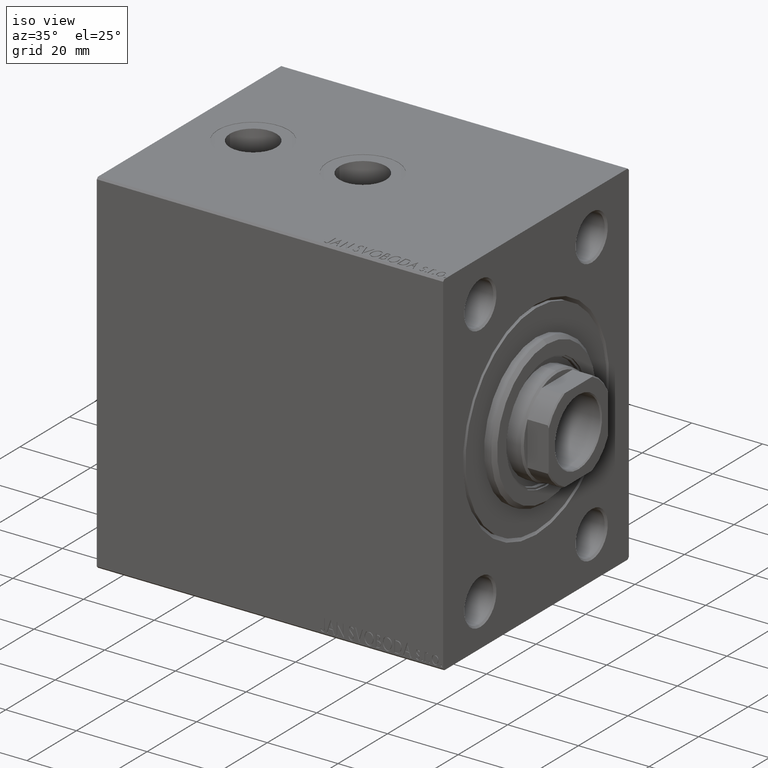
[diagram: clean part render]
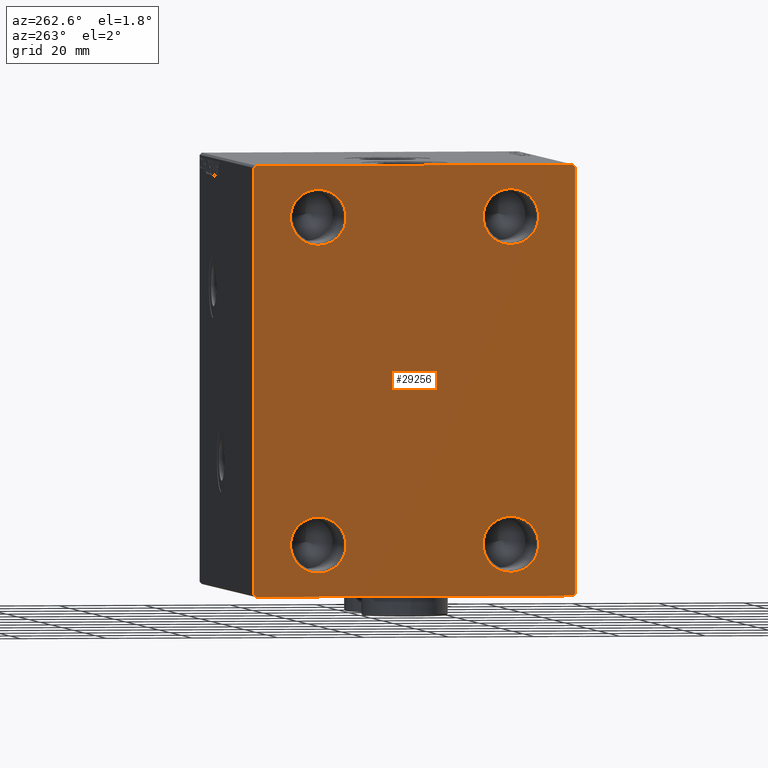
[diagram: tour spotlight — one face highlighted and labeled with its STEP entity id]
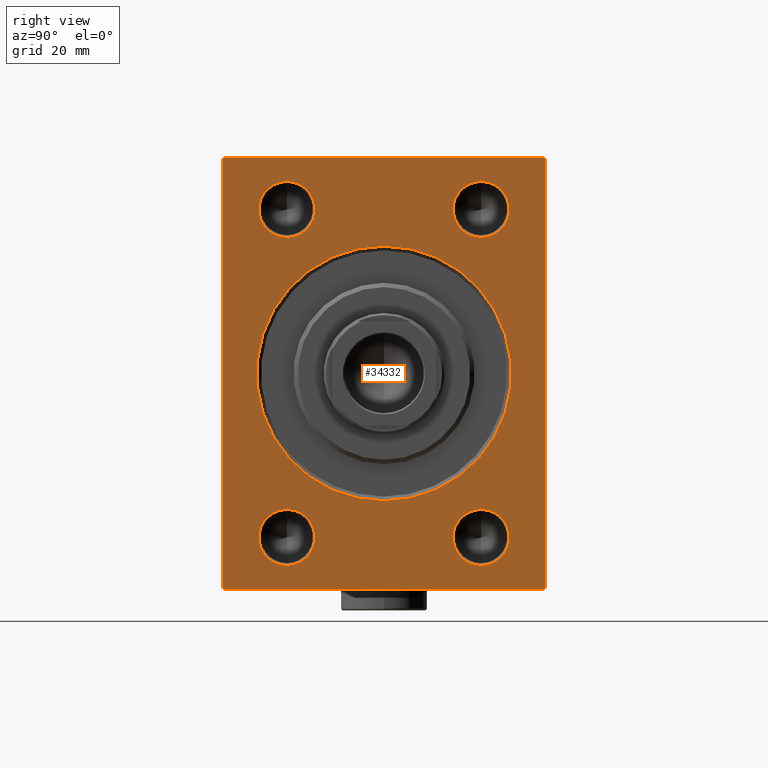
[diagram: tour spotlight — one face highlighted and labeled with its STEP entity id]
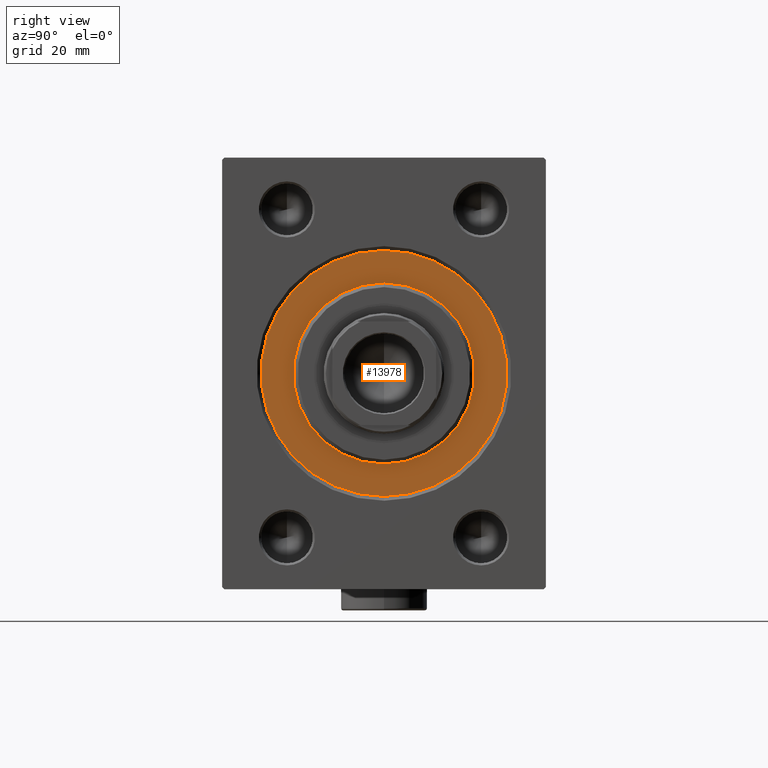
[diagram: tour spotlight — one face highlighted and labeled with its STEP entity id]
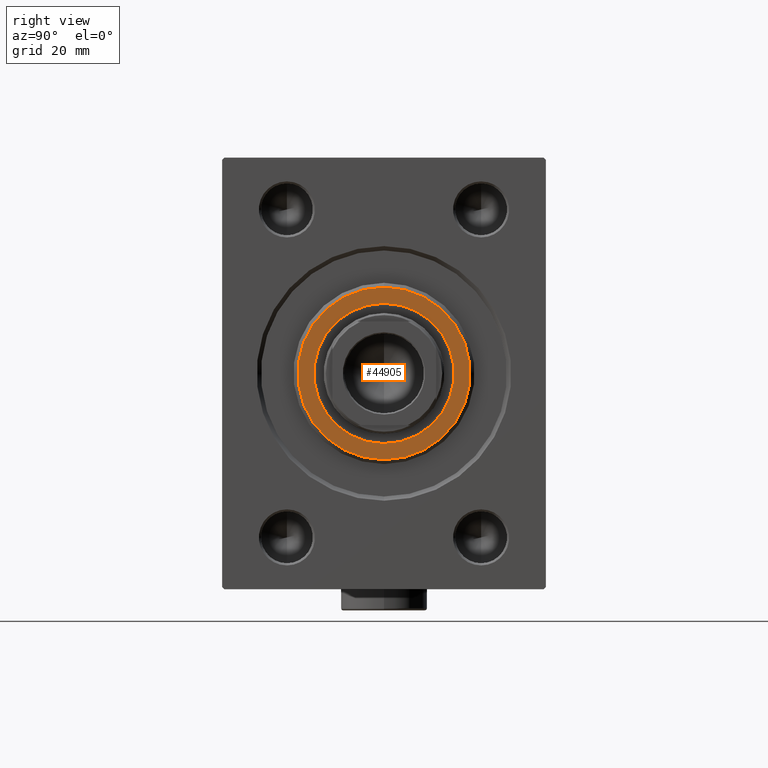
[diagram: tour spotlight — one face highlighted and labeled with its STEP entity id]
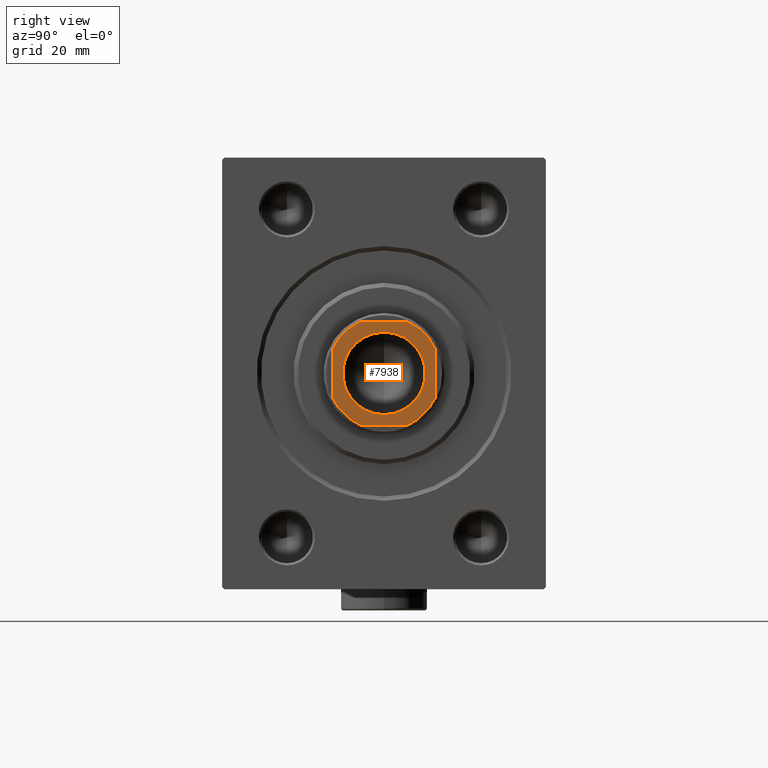
[diagram: tour spotlight — one face highlighted and labeled with its STEP entity id]
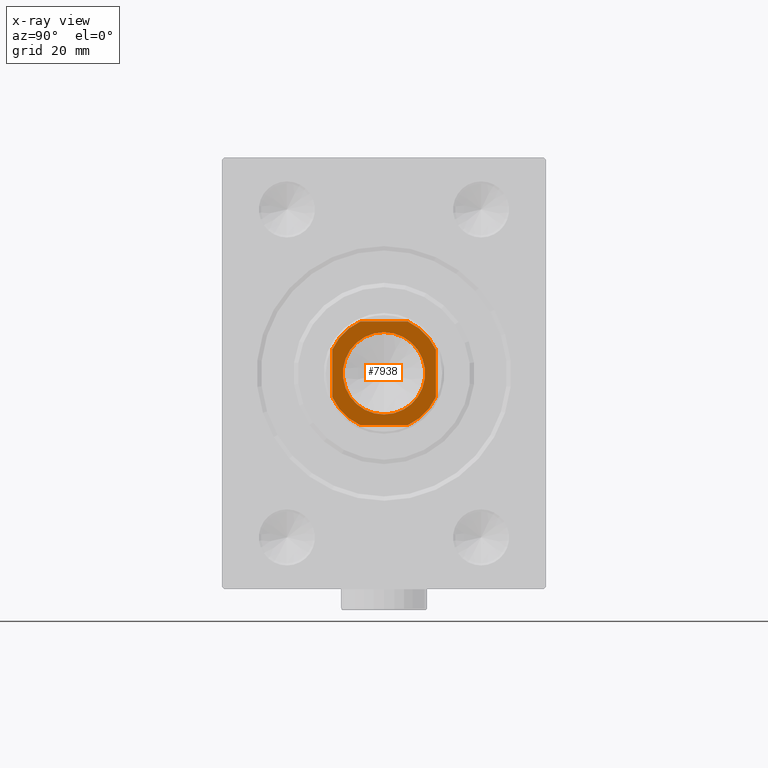
[diagram: x-ray of the same camera — body ghosted, this tour face saturated]
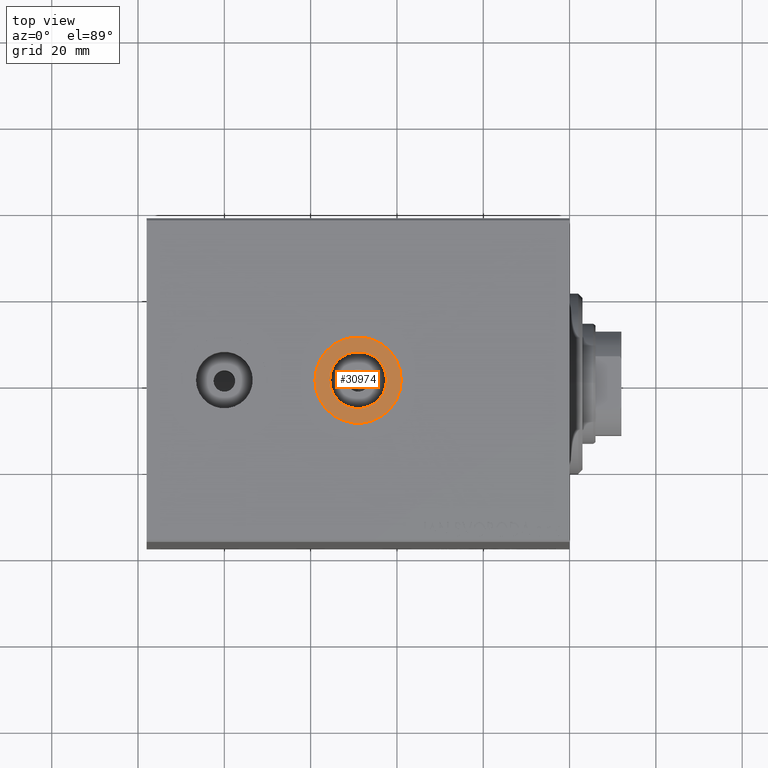
[diagram: tour spotlight — one face highlighted and labeled with its STEP entity id]
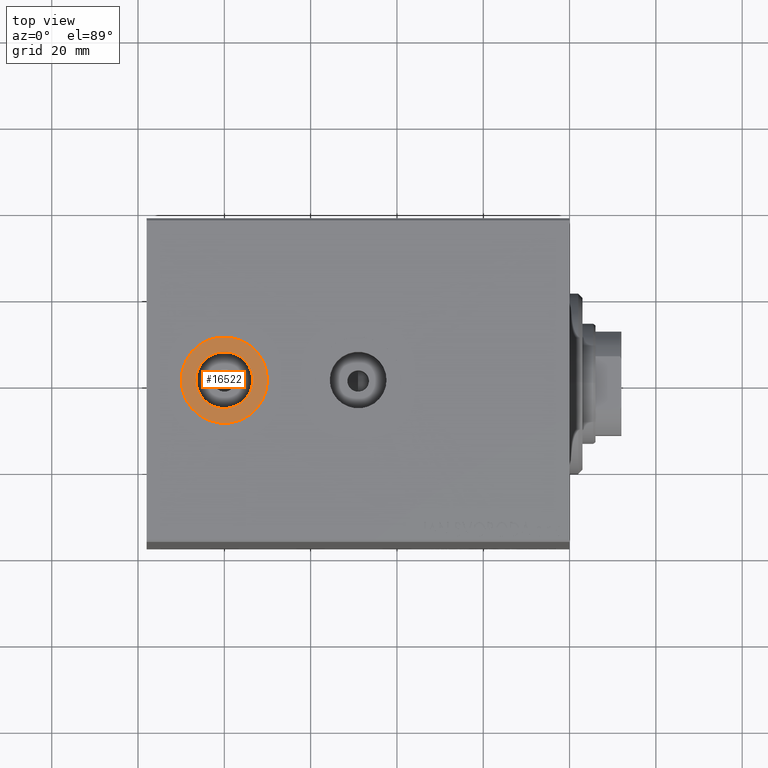
[diagram: tour spotlight — one face highlighted and labeled with its STEP entity id]
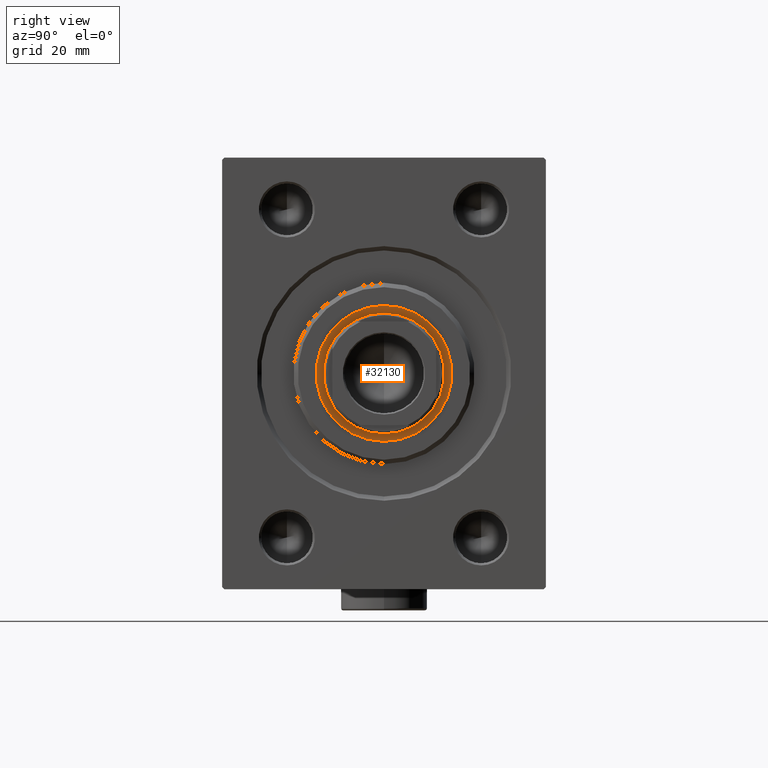
[diagram: tour spotlight — one face highlighted and labeled with its STEP entity id]
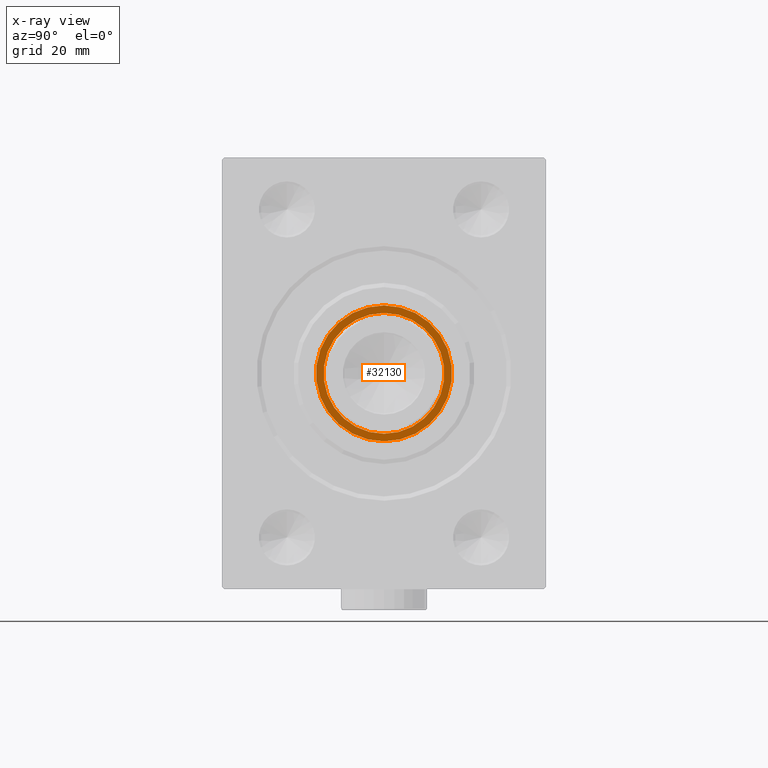
[diagram: x-ray of the same camera — body ghosted, this tour face saturated]
A machine part: a face-by-face anatomy tour. The part has 959 B-rep faces; the first image is the clean iso view, then the 8 largest visible faces are spotlighted one at a time (largest first), each with its STEP entity span.

Face 1 — auxiliary view, entity #29256. In plain terms, the highlighted planar face has unit normal (-1, -0, 0).
Definition (entity closure, byte-faithful):
#219 = CIRCLE ( 'NONE', #1723, 6.499999999999992006 ) ;
#365 = CARTESIAN_POINT ( 'NONE',  ( 98.00000000000000000, -37.50000000000000000, 49.49999999999998579 ) ) ;
#441 = FACE_OUTER_BOUND ( 'NONE', #5605, .T. ) ;
#595 = AXIS2_PLACEMENT_3D ( 'NONE', #32725, #7227, #43242 ) ;
#702 = LINE ( 'NONE', #11709, #22315 ) ;
#986 = LINE ( 'NONE', #33968, #42797 ) ;
#1162 = EDGE_CURVE ( 'NONE', #24617, #41285, #31376, .T. ) ;
#1243 = CARTESIAN_POINT ( 'NONE',  ( 98.00000000000000000, 22.49999999999999289, 38.00000000000000000 ) ) ;
#1632 = EDGE_CURVE ( 'NONE', #30885, #26612, #43307, .T. ) ;
#1723 = AXIS2_PLACEMENT_3D ( 'NONE', #7528, #36296, #21813 ) ;
#1913 = DIRECTION ( 'NONE',  ( -0.000000000000000000, 0.7071067811865474617, 0.7071067811865474617 ) ) ;
#1977 = LINE ( 'NONE', #19549, #35640 ) ;
#2386 = CARTESIAN_POINT ( 'NONE',  ( 98.00000000000000000, 22.49999999999999289, 38.00000000000000000 ) ) ;
#2707 = DIRECTION ( 'NONE',  ( 0.000000000000000000, -1.000000000000000000, -3.700743415417189125E-16 ) ) ;
#2711 = EDGE_CURVE ( 'NONE', #45322, #14829, #44013, .T. ) ;
#2979 = AXIS2_PLACEMENT_3D ( 'NONE', #33720, #22503, #36760 ) ;
#3275 = CIRCLE ( 'NONE', #7744, 6.499999999999992006 ) ;
#3318 = CARTESIAN_POINT ( 'NONE',  ( 98.00000000000000000, 37.49999999999998579, 49.50000000000000000 ) ) ;
#3762 = CARTESIAN_POINT ( 'NONE',  ( 98.00000000000000000, 22.49999999999999289, 44.49999999999999289 ) ) ;
#4053 = EDGE_LOOP ( 'NONE', ( #7815, #37661 ) ) ;
#4118 = ORIENTED_EDGE ( 'NONE', *, *, #26561, .T. ) ;
#4178 = PLANE ( 'NONE',  #595 ) ;
#4517 = VECTOR ( 'NONE', #16775, 1000.000000000000114 ) ;
#5352 = AXIS2_PLACEMENT_3D ( 'NONE', #2386, #46113, #30944 ) ;
#5605 = EDGE_LOOP ( 'NONE', ( #19319, #26660, #19439, #24216, #27601, #26966, #25059, #4118 ) ) ;
#7227 = DIRECTION ( 'NONE',  ( 1.000000000000000000, 0.000000000000000000, 0.000000000000000000 ) ) ;
#7263 = ORIENTED_EDGE ( 'NONE', *, *, #12793, .F. ) ;
#7528 = CARTESIAN_POINT ( 'NONE',  ( 98.00000000000000000, -22.50000000000000711, -38.00000000000000000 ) ) ;
#7744 = AXIS2_PLACEMENT_3D ( 'NONE', #1243, #43132, #11784 ) ;
#7815 = ORIENTED_EDGE ( 'NONE', *, *, #40571, .F. ) ;
#8018 = EDGE_LOOP ( 'NONE', ( #9706, #10350 ) ) ;
#8451 = DIRECTION ( 'NONE',  ( 1.000000000000000000, -0.000000000000000000, -0.000000000000000000 ) ) ;
#8541 = DIRECTION ( 'NONE',  ( -0.000000000000000000, -0.7071067811865474617, 0.7071067811865474617 ) ) ;
#8925 = DIRECTION ( 'NONE',  ( 0.000000000000000000, 0.000000000000000000, -1.000000000000000000 ) ) ;
#9035 = LINE ( 'NONE', #30102, #4517 ) ;
#9161 = EDGE_CURVE ( 'NONE', #26612, #30885, #32358, .T. ) ;
#9706 = ORIENTED_EDGE ( 'NONE', *, *, #10072, .F. ) ;
#9768 = EDGE_CURVE ( 'NONE', #23449, #28855, #27507, .T. ) ;
#10072 = EDGE_CURVE ( 'NONE', #45961, #18182, #3275, .T. ) ;
#10350 = ORIENTED_EDGE ( 'NONE', *, *, #45839, .F. ) ;
#10882 = DIRECTION ( 'NONE',  ( 0.000000000000000000, 0.000000000000000000, -1.000000000000000000 ) ) ;
#11508 = DIRECTION ( 'NONE',  ( 0.000000000000000000, 0.000000000000000000, -1.000000000000000000 ) ) ;
#11709 = CARTESIAN_POINT ( 'NONE',  ( 98.00000000000000000, -37.50000000000000000, 49.99999999999998579 ) ) ;
#11728 = CIRCLE ( 'NONE', #22189, 6.499999999999992006 ) ;
#11784 = DIRECTION ( 'NONE',  ( 0.000000000000000000, 0.000000000000000000, -1.000000000000000000 ) ) ;
#12510 = CARTESIAN_POINT ( 'NONE',  ( 98.00000000000000000, 22.49999999999999289, -44.49999999999999289 ) ) ;
#12793 = EDGE_CURVE ( 'NONE', #22234, #36794, #219, .T. ) ;
#12819 = VECTOR ( 'NONE', #31768, 1000.000000000000114 ) ;
#13005 = CARTESIAN_POINT ( 'NONE',  ( 98.00000000000000000, 37.49999999999998579, 50.00000000000001421 ) ) ;
#13530 = CARTESIAN_POINT ( 'NONE',  ( 98.00000000000000000, -43.50000000000000711, -43.50000000000000711 ) ) ;
#13597 = CIRCLE ( 'NONE', #5352, 6.499999999999992006 ) ;
#13859 = CARTESIAN_POINT ( 'NONE',  ( 98.00000000000000000, -37.50000000000000000, -49.50000000000001421 ) ) ;
#14043 = CARTESIAN_POINT ( 'NONE',  ( 98.00000000000000000, -22.50000000000000711, 44.49999999999999289 ) ) ;
#14472 = EDGE_CURVE ( 'NONE', #32995, #20546, #39419, .T. ) ;
#14829 = VERTEX_POINT ( 'NONE', #15581 ) ;
#15018 = CARTESIAN_POINT ( 'NONE',  ( 98.00000000000000000, -22.50000000000000711, -31.50000000000000711 ) ) ;
#15066 = CARTESIAN_POINT ( 'NONE',  ( 98.00000000000000000, -22.50000000000000711, 31.50000000000000711 ) ) ;
#15491 = DIRECTION ( 'NONE',  ( 1.000000000000000000, -0.000000000000000000, -0.000000000000000000 ) ) ;
#15581 = CARTESIAN_POINT ( 'NONE',  ( 98.00000000000000000, 37.00000000000000000, -50.00000000000000000 ) ) ;
#16399 = CARTESIAN_POINT ( 'NONE',  ( 98.00000000000000000, 22.49999999999999289, -38.00000000000000000 ) ) ;
#16638 = DIRECTION ( 'NONE',  ( 1.000000000000000000, -0.000000000000000000, -0.000000000000000000 ) ) ;
#16683 = AXIS2_PLACEMENT_3D ( 'NONE', #16399, #16638, #44922 ) ;
#16775 = DIRECTION ( 'NONE',  ( 0.000000000000000000, -0.7071067811865474617, -0.7071067811865474617 ) ) ;
#17378 = CARTESIAN_POINT ( 'NONE',  ( 98.00000000000000000, -37.00000000000000000, 49.99999999999998579 ) ) ;
#18182 = VERTEX_POINT ( 'NONE', #34543 ) ;
#19319 = ORIENTED_EDGE ( 'NONE', *, *, #9768, .T. ) ;
#19439 = ORIENTED_EDGE ( 'NONE', *, *, #33187, .T. ) ;
#19549 = CARTESIAN_POINT ( 'NONE',  ( 98.00000000000000000, 43.49999999999998579, 43.49999999999998579 ) ) ;
#20546 = VERTEX_POINT ( 'NONE', #3318 ) ;
#21450 = CARTESIAN_POINT ( 'NONE',  ( 98.00000000000000000, 36.99999999999997158, 50.00000000000001421 ) ) ;
#21813 = DIRECTION ( 'NONE',  ( 0.000000000000000000, 0.000000000000000000, -1.000000000000000000 ) ) ;
#21920 = VECTOR ( 'NONE', #2707, 1000.000000000000000 ) ;
#22189 = AXIS2_PLACEMENT_3D ( 'NONE', #26226, #8451, #11508 ) ;
#22234 = VERTEX_POINT ( 'NONE', #15018 ) ;
#22315 = VECTOR ( 'NONE', #39555, 1000.000000000000000 ) ;
#22503 = DIRECTION ( 'NONE',  ( 1.000000000000000000, -0.000000000000000000, -0.000000000000000000 ) ) ;
#23449 = VERTEX_POINT ( 'NONE', #21450 ) ;
#23817 = ORIENTED_EDGE ( 'NONE', *, *, #24980, .F. ) ;
#24216 = ORIENTED_EDGE ( 'NONE', *, *, #41573, .T. ) ;
#24617 = VERTEX_POINT ( 'NONE', #15066 ) ;
#24980 = EDGE_CURVE ( 'NONE', #36794, #22234, #11728, .T. ) ;
#25059 = ORIENTED_EDGE ( 'NONE', *, *, #14472, .T. ) ;
#25389 = CARTESIAN_POINT ( 'NONE',  ( 98.00000000000000000, 37.50000000000000000, -50.00000000000000000 ) ) ;
#26146 = AXIS2_PLACEMENT_3D ( 'NONE', #43376, #33082, #10882 ) ;
#26226 = CARTESIAN_POINT ( 'NONE',  ( 98.00000000000000000, -22.50000000000000711, -38.00000000000000000 ) ) ;
#26561 = EDGE_CURVE ( 'NONE', #20546, #23449, #1977, .T. ) ;
#26612 = VERTEX_POINT ( 'NONE', #12510 ) ;
#26660 = ORIENTED_EDGE ( 'NONE', *, *, #39960, .T. ) ;
#26966 = ORIENTED_EDGE ( 'NONE', *, *, #44947, .T. ) ;
#27507 = LINE ( 'NONE', #13005, #21920 ) ;
#27601 = ORIENTED_EDGE ( 'NONE', *, *, #2711, .T. ) ;
#27698 = VECTOR ( 'NONE', #40508, 1000.000000000000000 ) ;
#27984 = CARTESIAN_POINT ( 'NONE',  ( 98.00000000000000000, -22.50000000000000711, -44.49999999999999289 ) ) ;
#28515 = FACE_BOUND ( 'NONE', #4053, .T. ) ;
#28814 = VERTEX_POINT ( 'NONE', #13859 ) ;
#28855 = VERTEX_POINT ( 'NONE', #17378 ) ;
#29256 = ADVANCED_FACE ( 'NONE', ( #39745, #28515, #32035, #32498, #441 ), #4178, .T. ) ;
#29764 = CARTESIAN_POINT ( 'NONE',  ( 98.00000000000000000, -37.50000000000000000, -50.00000000000001421 ) ) ;
#30102 = CARTESIAN_POINT ( 'NONE',  ( 98.00000000000000000, -43.49999999999999289, 43.49999999999999289 ) ) ;
#30194 = EDGE_LOOP ( 'NONE', ( #7263, #23817 ) ) ;
#30648 = ORIENTED_EDGE ( 'NONE', *, *, #1632, .F. ) ;
#30885 = VERTEX_POINT ( 'NONE', #39360 ) ;
#30944 = DIRECTION ( 'NONE',  ( 0.000000000000000000, 0.000000000000000000, -1.000000000000000000 ) ) ;
#31376 = CIRCLE ( 'NONE', #26146, 6.499999999999992006 ) ;
#31768 = DIRECTION ( 'NONE',  ( -0.000000000000000000, 0.7071067811865474617, -0.7071067811865474617 ) ) ;
#32035 = FACE_BOUND ( 'NONE', #30194, .T. ) ;
#32358 = CIRCLE ( 'NONE', #16683, 6.499999999999992006 ) ;
#32498 = FACE_BOUND ( 'NONE', #38538, .T. ) ;
#32725 = CARTESIAN_POINT ( 'NONE',  ( 98.00000000000000000, 0.000000000000000000, 0.000000000000000000 ) ) ;
#32858 = DIRECTION ( 'NONE',  ( 0.000000000000000000, -1.387778780781445429E-16, 1.000000000000000000 ) ) ;
#32995 = VERTEX_POINT ( 'NONE', #44492 ) ;
#33082 = DIRECTION ( 'NONE',  ( 1.000000000000000000, -0.000000000000000000, -0.000000000000000000 ) ) ;
#33187 = EDGE_CURVE ( 'NONE', #45438, #28814, #702, .T. ) ;
#33720 = CARTESIAN_POINT ( 'NONE',  ( 98.00000000000000000, 22.49999999999999289, -38.00000000000000000 ) ) ;
#33968 = CARTESIAN_POINT ( 'NONE',  ( 98.00000000000000000, 43.50000000000000711, -43.50000000000000711 ) ) ;
#34543 = CARTESIAN_POINT ( 'NONE',  ( 98.00000000000000000, 22.49999999999999289, 31.50000000000000711 ) ) ;
#34828 = LINE ( 'NONE', #13530, #12819 ) ;
#35209 = CIRCLE ( 'NONE', #38208, 6.499999999999992006 ) ;
#35640 = VECTOR ( 'NONE', #8541, 1000.000000000000114 ) ;
#36296 = DIRECTION ( 'NONE',  ( 1.000000000000000000, -0.000000000000000000, -0.000000000000000000 ) ) ;
#36760 = DIRECTION ( 'NONE',  ( 0.000000000000000000, 0.000000000000000000, -1.000000000000000000 ) ) ;
#36794 = VERTEX_POINT ( 'NONE', #27984 ) ;
#37661 = ORIENTED_EDGE ( 'NONE', *, *, #1162, .F. ) ;
#38208 = AXIS2_PLACEMENT_3D ( 'NONE', #44944, #15491, #8925 ) ;
#38538 = EDGE_LOOP ( 'NONE', ( #30648, #39922 ) ) ;
#38754 = CARTESIAN_POINT ( 'NONE',  ( 98.00000000000000000, -37.00000000000000000, -50.00000000000001421 ) ) ;
#39094 = VECTOR ( 'NONE', #32858, 1000.000000000000000 ) ;
#39360 = CARTESIAN_POINT ( 'NONE',  ( 98.00000000000000000, 22.49999999999999289, -31.50000000000000711 ) ) ;
#39419 = LINE ( 'NONE', #25389, #39094 ) ;
#39555 = DIRECTION ( 'NONE',  ( 0.000000000000000000, 0.000000000000000000, -1.000000000000000000 ) ) ;
#39745 = FACE_BOUND ( 'NONE', #8018, .T. ) ;
#39922 = ORIENTED_EDGE ( 'NONE', *, *, #9161, .F. ) ;
#39960 = EDGE_CURVE ( 'NONE', #28855, #45438, #9035, .T. ) ;
#40508 = DIRECTION ( 'NONE',  ( 0.000000000000000000, 1.000000000000000000, 1.850371707708594316E-16 ) ) ;
#40571 = EDGE_CURVE ( 'NONE', #41285, #24617, #35209, .T. ) ;
#41285 = VERTEX_POINT ( 'NONE', #14043 ) ;
#41573 = EDGE_CURVE ( 'NONE', #28814, #45322, #34828, .T. ) ;
#42797 = VECTOR ( 'NONE', #1913, 1000.000000000000114 ) ;
#43132 = DIRECTION ( 'NONE',  ( 1.000000000000000000, -0.000000000000000000, -0.000000000000000000 ) ) ;
#43242 = DIRECTION ( 'NONE',  ( 0.000000000000000000, 0.000000000000000000, -1.000000000000000000 ) ) ;
#43307 = CIRCLE ( 'NONE', #2979, 6.499999999999992006 ) ;
#43376 = CARTESIAN_POINT ( 'NONE',  ( 98.00000000000000000, -22.50000000000000711, 38.00000000000000000 ) ) ;
#44013 = LINE ( 'NONE', #29764, #27698 ) ;
#44492 = CARTESIAN_POINT ( 'NONE',  ( 98.00000000000000000, 37.50000000000000000, -49.50000000000000000 ) ) ;
#44922 = DIRECTION ( 'NONE',  ( 0.000000000000000000, 0.000000000000000000, -1.000000000000000000 ) ) ;
#44944 = CARTESIAN_POINT ( 'NONE',  ( 98.00000000000000000, -22.50000000000000711, 38.00000000000000000 ) ) ;
#44947 = EDGE_CURVE ( 'NONE', #14829, #32995, #986, .T. ) ;
#45322 = VERTEX_POINT ( 'NONE', #38754 ) ;
#45438 = VERTEX_POINT ( 'NONE', #365 ) ;
#45839 = EDGE_CURVE ( 'NONE', #18182, #45961, #13597, .T. ) ;
#45961 = VERTEX_POINT ( 'NONE', #3762 ) ;
#46113 = DIRECTION ( 'NONE',  ( 1.000000000000000000, -0.000000000000000000, -0.000000000000000000 ) ) ;

Face 2 — right view, entity #34332. In plain terms, the highlighted planar face has unit normal (-1, -0, 0).
Definition (entity closure, byte-faithful):
#358 = ORIENTED_EDGE ( 'NONE', *, *, #15902, .T. ) ;
#712 = EDGE_LOOP ( 'NONE', ( #17985, #45140 ) ) ;
#1121 = CARTESIAN_POINT ( 'NONE',  ( 0.000000000000000000, -22.50000000000000711, 44.49999999999999289 ) ) ;
#1361 = CARTESIAN_POINT ( 'NONE',  ( 0.000000000000000000, -37.50000000000000000, 49.49999999999998579 ) ) ;
#1576 = ORIENTED_EDGE ( 'NONE', *, *, #30131, .T. ) ;
#2058 = DIRECTION ( 'NONE',  ( 1.000000000000000000, 0.000000000000000000, 0.000000000000000000 ) ) ;
#2124 = PLANE ( 'NONE',  #15603 ) ;
#2180 = CARTESIAN_POINT ( 'NONE',  ( 0.000000000000000000, 22.49999999999999289, -44.49999999999999289 ) ) ;
#2460 = ORIENTED_EDGE ( 'NONE', *, *, #9864, .T. ) ;
#2561 = CARTESIAN_POINT ( 'NONE',  ( 0.000000000000000000, 37.50000000000000000, -49.50000000000000000 ) ) ;
#2646 = ORIENTED_EDGE ( 'NONE', *, *, #18092, .T. ) ;
#2681 = ORIENTED_EDGE ( 'NONE', *, *, #35077, .T. ) ;
#2874 = DIRECTION ( 'NONE',  ( 0.000000000000000000, 0.000000000000000000, -1.000000000000000000 ) ) ;
#2932 = DIRECTION ( 'NONE',  ( 0.000000000000000000, 0.000000000000000000, -1.000000000000000000 ) ) ;
#3020 = EDGE_LOOP ( 'NONE', ( #2646, #30304 ) ) ;
#3115 = CARTESIAN_POINT ( 'NONE',  ( 0.000000000000000000, 36.99999999999997158, 50.00000000000001421 ) ) ;
#3567 = DIRECTION ( 'NONE',  ( 0.000000000000000000, 1.000000000000000000, 1.850371707708594316E-16 ) ) ;
#3786 = DIRECTION ( 'NONE',  ( 0.000000000000000000, 0.000000000000000000, -1.000000000000000000 ) ) ;
#4044 = CIRCLE ( 'NONE', #19729, 6.499999999999992006 ) ;
#5091 = CIRCLE ( 'NONE', #24557, 29.50000000000001421 ) ;
#5222 = CIRCLE ( 'NONE', #39601, 6.499999999999992006 ) ;
#5233 = CARTESIAN_POINT ( 'NONE',  ( 0.000000000000000000, 3.612708057484693970E-15, -29.50000000000001421 ) ) ;
#5394 = FACE_BOUND ( 'NONE', #20376, .T. ) ;
#5454 = DIRECTION ( 'NONE',  ( 0.000000000000000000, 0.000000000000000000, -1.000000000000000000 ) ) ;
#5681 = CARTESIAN_POINT ( 'NONE',  ( 0.000000000000000000, -37.00000000000000000, -50.00000000000001421 ) ) ;
#5687 = DIRECTION ( 'NONE',  ( 1.000000000000000000, 0.000000000000000000, 0.000000000000000000 ) ) ;
#6140 = CARTESIAN_POINT ( 'NONE',  ( 0.000000000000000000, -37.00000000000000000, -50.00000000000001421 ) ) ;
#6202 = ORIENTED_EDGE ( 'NONE', *, *, #16506, .T. ) ;
#6313 = EDGE_CURVE ( 'NONE', #7914, #33100, #20200, .T. ) ;
#6448 = CARTESIAN_POINT ( 'NONE',  ( 0.000000000000000000, -22.50000000000000711, 38.00000000000000000 ) ) ;
#6487 = VERTEX_POINT ( 'NONE', #1121 ) ;
#6727 = CARTESIAN_POINT ( 'NONE',  ( 0.000000000000000000, 22.49999999999999289, 38.00000000000000000 ) ) ;
#6861 = CARTESIAN_POINT ( 'NONE',  ( 0.000000000000000000, 22.49999999999999289, -31.50000000000000711 ) ) ;
#7456 = DIRECTION ( 'NONE',  ( 0.000000000000000000, -0.7071067811865474617, -0.7071067811865474617 ) ) ;
#7864 = AXIS2_PLACEMENT_3D ( 'NONE', #17951, #39225, #21461 ) ;
#7914 = VERTEX_POINT ( 'NONE', #5681 ) ;
#8004 = DIRECTION ( 'NONE',  ( 0.000000000000000000, -1.387778780781445429E-16, 1.000000000000000000 ) ) ;
#8171 = AXIS2_PLACEMENT_3D ( 'NONE', #41611, #38573, #29180 ) ;
#8448 = AXIS2_PLACEMENT_3D ( 'NONE', #25991, #29502, #43763 ) ;
#8687 = FACE_BOUND ( 'NONE', #712, .T. ) ;
#8878 = VECTOR ( 'NONE', #36139, 1000.000000000000114 ) ;
#9102 = EDGE_CURVE ( 'NONE', #6487, #27012, #20430, .T. ) ;
#9153 = FACE_BOUND ( 'NONE', #38932, .T. ) ;
#9357 = ORIENTED_EDGE ( 'NONE', *, *, #39411, .F. ) ;
#9864 = EDGE_CURVE ( 'NONE', #45717, #43579, #14435, .T. ) ;
#10246 = CARTESIAN_POINT ( 'NONE',  ( 0.000000000000000000, -37.50000000000000000, 49.49999999999998579 ) ) ;
#10334 = ORIENTED_EDGE ( 'NONE', *, *, #9102, .T. ) ;
#10519 = AXIS2_PLACEMENT_3D ( 'NONE', #6448, #45976, #24923 ) ;
#11086 = VERTEX_POINT ( 'NONE', #3115 ) ;
#11879 = EDGE_LOOP ( 'NONE', ( #30481, #6202, #22770, #2681, #31862, #35160, #9357, #25123 ) ) ;
#11993 = CARTESIAN_POINT ( 'NONE',  ( 0.000000000000000000, 22.49999999999999289, 44.49999999999999289 ) ) ;
#12183 = CARTESIAN_POINT ( 'NONE',  ( 0.000000000000000000, -37.00000000000000000, 49.99999999999998579 ) ) ;
#12657 = FACE_OUTER_BOUND ( 'NONE', #11879, .T. ) ;
#12720 = CIRCLE ( 'NONE', #10519, 6.499999999999992006 ) ;
#13848 = AXIS2_PLACEMENT_3D ( 'NONE', #45223, #20450, #2874 ) ;
#14091 = LINE ( 'NONE', #28358, #46088 ) ;
#14435 = CIRCLE ( 'NONE', #40566, 6.499999999999992006 ) ;
#14575 = CARTESIAN_POINT ( 'NONE',  ( 0.000000000000000000, 37.50000000000000000, -50.00000000000000000 ) ) ;
#15281 = VERTEX_POINT ( 'NONE', #12183 ) ;
#15334 = CARTESIAN_POINT ( 'NONE',  ( 0.000000000000000000, 37.49999999999998579, 49.50000000000000000 ) ) ;
#15603 = AXIS2_PLACEMENT_3D ( 'NONE', #44001, #34181, #16412 ) ;
#15821 = EDGE_CURVE ( 'NONE', #41102, #26792, #32512, .T. ) ;
#15902 = EDGE_CURVE ( 'NONE', #31848, #36778, #34012, .T. ) ;
#15982 = VECTOR ( 'NONE', #40432, 1000.000000000000114 ) ;
#16412 = DIRECTION ( 'NONE',  ( 0.000000000000000000, 0.000000000000000000, -1.000000000000000000 ) ) ;
#16506 = EDGE_CURVE ( 'NONE', #33940, #15281, #37161, .T. ) ;
#17216 = VERTEX_POINT ( 'NONE', #2180 ) ;
#17459 = LINE ( 'NONE', #38949, #8878 ) ;
#17754 = EDGE_CURVE ( 'NONE', #32137, #32559, #36087, .T. ) ;
#17951 = CARTESIAN_POINT ( 'NONE',  ( 0.000000000000000000, 0.000000000000000000, 0.000000000000000000 ) ) ;
#17985 = ORIENTED_EDGE ( 'NONE', *, *, #29486, .T. ) ;
#18082 = VECTOR ( 'NONE', #27669, 1000.000000000000114 ) ;
#18092 = EDGE_CURVE ( 'NONE', #37950, #17216, #4044, .T. ) ;
#18468 = LINE ( 'NONE', #43474, #43174 ) ;
#19177 = LINE ( 'NONE', #25554, #44130 ) ;
#19729 = AXIS2_PLACEMENT_3D ( 'NONE', #30111, #23558, #44598 ) ;
#20200 = LINE ( 'NONE', #6140, #18082 ) ;
#20376 = EDGE_LOOP ( 'NONE', ( #2460, #1576 ) ) ;
#20430 = CIRCLE ( 'NONE', #8448, 6.499999999999992006 ) ;
#20450 = DIRECTION ( 'NONE',  ( 1.000000000000000000, 0.000000000000000000, 0.000000000000000000 ) ) ;
#20560 = CARTESIAN_POINT ( 'NONE',  ( 0.000000000000000000, 0.000000000000000000, 0.000000000000000000 ) ) ;
#21461 = DIRECTION ( 'NONE',  ( 0.000000000000000000, 0.000000000000000000, -1.000000000000000000 ) ) ;
#21802 = LINE ( 'NONE', #24844, #36462 ) ;
#22030 = CARTESIAN_POINT ( 'NONE',  ( 0.000000000000000000, 37.00000000000000000, -50.00000000000000000 ) ) ;
#22088 = ORIENTED_EDGE ( 'NONE', *, *, #39017, .T. ) ;
#22378 = CIRCLE ( 'NONE', #8171, 6.499999999999992006 ) ;
#22410 = EDGE_LOOP ( 'NONE', ( #10334, #22088 ) ) ;
#22770 = ORIENTED_EDGE ( 'NONE', *, *, #28903, .F. ) ;
#23051 = CIRCLE ( 'NONE', #34268, 6.499999999999992006 ) ;
#23558 = DIRECTION ( 'NONE',  ( 1.000000000000000000, 0.000000000000000000, 0.000000000000000000 ) ) ;
#24557 = AXIS2_PLACEMENT_3D ( 'NONE', #20560, #34576, #45566 ) ;
#24682 = DIRECTION ( 'NONE',  ( 1.000000000000000000, 0.000000000000000000, 0.000000000000000000 ) ) ;
#24844 = CARTESIAN_POINT ( 'NONE',  ( 0.000000000000000000, 37.49999999999998579, 50.00000000000001421 ) ) ;
#24917 = EDGE_CURVE ( 'NONE', #33940, #33100, #14091, .T. ) ;
#24923 = DIRECTION ( 'NONE',  ( 0.000000000000000000, 0.000000000000000000, -1.000000000000000000 ) ) ;
#25123 = ORIENTED_EDGE ( 'NONE', *, *, #6313, .T. ) ;
#25554 = CARTESIAN_POINT ( 'NONE',  ( 0.000000000000000000, -37.50000000000000000, -50.00000000000001421 ) ) ;
#25991 = CARTESIAN_POINT ( 'NONE',  ( 0.000000000000000000, -22.50000000000000711, 38.00000000000000000 ) ) ;
#26792 = VERTEX_POINT ( 'NONE', #29545 ) ;
#27012 = VERTEX_POINT ( 'NONE', #36217 ) ;
#27338 = DIRECTION ( 'NONE',  ( 0.000000000000000000, 0.000000000000000000, -1.000000000000000000 ) ) ;
#27669 = DIRECTION ( 'NONE',  ( -0.000000000000000000, -0.7071067811865474617, 0.7071067811865474617 ) ) ;
#28358 = CARTESIAN_POINT ( 'NONE',  ( 0.000000000000000000, -37.50000000000000000, 49.99999999999998579 ) ) ;
#28638 = ORIENTED_EDGE ( 'NONE', *, *, #38440, .T. ) ;
#28903 = EDGE_CURVE ( 'NONE', #11086, #15281, #21802, .T. ) ;
#28910 = VERTEX_POINT ( 'NONE', #22030 ) ;
#29168 = EDGE_CURVE ( 'NONE', #32137, #28910, #18468, .T. ) ;
#29180 = DIRECTION ( 'NONE',  ( 0.000000000000000000, 0.000000000000000000, -1.000000000000000000 ) ) ;
#29474 = CARTESIAN_POINT ( 'NONE',  ( 0.000000000000000000, 22.49999999999999289, 31.50000000000000711 ) ) ;
#29486 = EDGE_CURVE ( 'NONE', #26792, #41102, #5091, .T. ) ;
#29502 = DIRECTION ( 'NONE',  ( 1.000000000000000000, 0.000000000000000000, 0.000000000000000000 ) ) ;
#29545 = CARTESIAN_POINT ( 'NONE',  ( 0.000000000000000000, 0.000000000000000000, 29.50000000000001421 ) ) ;
#29748 = FACE_BOUND ( 'NONE', #22410, .T. ) ;
#30111 = CARTESIAN_POINT ( 'NONE',  ( 0.000000000000000000, 22.49999999999999289, -38.00000000000000000 ) ) ;
#30131 = EDGE_CURVE ( 'NONE', #43579, #45717, #23051, .T. ) ;
#30304 = ORIENTED_EDGE ( 'NONE', *, *, #35554, .T. ) ;
#30481 = ORIENTED_EDGE ( 'NONE', *, *, #24917, .F. ) ;
#31494 = CARTESIAN_POINT ( 'NONE',  ( 0.000000000000000000, -22.50000000000000711, -31.50000000000000711 ) ) ;
#31848 = VERTEX_POINT ( 'NONE', #39899 ) ;
#31862 = ORIENTED_EDGE ( 'NONE', *, *, #17754, .F. ) ;
#32074 = CARTESIAN_POINT ( 'NONE',  ( 0.000000000000000000, -37.50000000000000000, -49.50000000000001421 ) ) ;
#32137 = VERTEX_POINT ( 'NONE', #2561 ) ;
#32441 = VECTOR ( 'NONE', #8004, 1000.000000000000000 ) ;
#32512 = CIRCLE ( 'NONE', #7864, 29.50000000000001421 ) ;
#32559 = VERTEX_POINT ( 'NONE', #15334 ) ;
#33100 = VERTEX_POINT ( 'NONE', #32074 ) ;
#33314 = CARTESIAN_POINT ( 'NONE',  ( 0.000000000000000000, -22.50000000000000711, -38.00000000000000000 ) ) ;
#33940 = VERTEX_POINT ( 'NONE', #10246 ) ;
#34012 = CIRCLE ( 'NONE', #13848, 6.499999999999992006 ) ;
#34181 = DIRECTION ( 'NONE',  ( 1.000000000000000000, 0.000000000000000000, 0.000000000000000000 ) ) ;
#34268 = AXIS2_PLACEMENT_3D ( 'NONE', #6727, #2058, #27338 ) ;
#34332 = ADVANCED_FACE ( 'NONE', ( #8687, #9153, #29748, #5394, #44701, #12657 ), #2124, .F. ) ;
#34576 = DIRECTION ( 'NONE',  ( 1.000000000000000000, 0.000000000000000000, 0.000000000000000000 ) ) ;
#35077 = EDGE_CURVE ( 'NONE', #11086, #32559, #17459, .T. ) ;
#35160 = ORIENTED_EDGE ( 'NONE', *, *, #29168, .T. ) ;
#35554 = EDGE_CURVE ( 'NONE', #17216, #37950, #22378, .T. ) ;
#36087 = LINE ( 'NONE', #14575, #32441 ) ;
#36139 = DIRECTION ( 'NONE',  ( -0.000000000000000000, 0.7071067811865474617, -0.7071067811865474617 ) ) ;
#36217 = CARTESIAN_POINT ( 'NONE',  ( 0.000000000000000000, -22.50000000000000711, 31.50000000000000711 ) ) ;
#36462 = VECTOR ( 'NONE', #39800, 1000.000000000000000 ) ;
#36778 = VERTEX_POINT ( 'NONE', #31494 ) ;
#37161 = LINE ( 'NONE', #1361, #15982 ) ;
#37950 = VERTEX_POINT ( 'NONE', #6861 ) ;
#38440 = EDGE_CURVE ( 'NONE', #36778, #31848, #5222, .T. ) ;
#38573 = DIRECTION ( 'NONE',  ( 1.000000000000000000, 0.000000000000000000, 0.000000000000000000 ) ) ;
#38932 = EDGE_LOOP ( 'NONE', ( #28638, #358 ) ) ;
#38949 = CARTESIAN_POINT ( 'NONE',  ( 0.000000000000000000, 36.99999999999997158, 50.00000000000001421 ) ) ;
#39017 = EDGE_CURVE ( 'NONE', #27012, #6487, #12720, .T. ) ;
#39225 = DIRECTION ( 'NONE',  ( 1.000000000000000000, 0.000000000000000000, 0.000000000000000000 ) ) ;
#39411 = EDGE_CURVE ( 'NONE', #7914, #28910, #19177, .T. ) ;
#39601 = AXIS2_PLACEMENT_3D ( 'NONE', #33314, #5687, #5454 ) ;
#39800 = DIRECTION ( 'NONE',  ( 0.000000000000000000, -1.000000000000000000, -3.700743415417189125E-16 ) ) ;
#39899 = CARTESIAN_POINT ( 'NONE',  ( 0.000000000000000000, -22.50000000000000711, -44.49999999999999289 ) ) ;
#40432 = DIRECTION ( 'NONE',  ( -0.000000000000000000, 0.7071067811865474617, 0.7071067811865474617 ) ) ;
#40566 = AXIS2_PLACEMENT_3D ( 'NONE', #45971, #24682, #2932 ) ;
#41102 = VERTEX_POINT ( 'NONE', #5233 ) ;
#41611 = CARTESIAN_POINT ( 'NONE',  ( 0.000000000000000000, 22.49999999999999289, -38.00000000000000000 ) ) ;
#43174 = VECTOR ( 'NONE', #7456, 1000.000000000000114 ) ;
#43474 = CARTESIAN_POINT ( 'NONE',  ( 0.000000000000000000, 37.50000000000000000, -49.50000000000000000 ) ) ;
#43579 = VERTEX_POINT ( 'NONE', #29474 ) ;
#43763 = DIRECTION ( 'NONE',  ( 0.000000000000000000, 0.000000000000000000, -1.000000000000000000 ) ) ;
#44001 = CARTESIAN_POINT ( 'NONE',  ( 0.000000000000000000, 0.000000000000000000, 0.000000000000000000 ) ) ;
#44130 = VECTOR ( 'NONE', #3567, 1000.000000000000000 ) ;
#44598 = DIRECTION ( 'NONE',  ( 0.000000000000000000, 0.000000000000000000, -1.000000000000000000 ) ) ;
#44701 = FACE_BOUND ( 'NONE', #3020, .T. ) ;
#45140 = ORIENTED_EDGE ( 'NONE', *, *, #15821, .T. ) ;
#45223 = CARTESIAN_POINT ( 'NONE',  ( 0.000000000000000000, -22.50000000000000711, -38.00000000000000000 ) ) ;
#45566 = DIRECTION ( 'NONE',  ( 0.000000000000000000, 0.000000000000000000, -1.000000000000000000 ) ) ;
#45717 = VERTEX_POINT ( 'NONE', #11993 ) ;
#45971 = CARTESIAN_POINT ( 'NONE',  ( 0.000000000000000000, 22.49999999999999289, 38.00000000000000000 ) ) ;
#45976 = DIRECTION ( 'NONE',  ( 1.000000000000000000, 0.000000000000000000, 0.000000000000000000 ) ) ;
#46088 = VECTOR ( 'NONE', #3786, 1000.000000000000000 ) ;

Face 3 — right view, entity #13978. In plain terms, the highlighted planar face has unit normal (-1, 0, 0).
Definition (entity closure, byte-faithful):
#217 = DIRECTION ( 'NONE',  ( -1.000000000000000000, 0.000000000000000000, 0.000000000000000000 ) ) ;
#907 = DIRECTION ( 'NONE',  ( 1.000000000000000000, -0.000000000000000000, 0.000000000000000000 ) ) ;
#1231 = ORIENTED_EDGE ( 'NONE', *, *, #8609, .F. ) ;
#1601 = DIRECTION ( 'NONE',  ( 1.000000000000000000, -0.000000000000000000, 0.000000000000000000 ) ) ;
#1841 = CARTESIAN_POINT ( 'NONE',  ( 0.000000000000000000, 0.000000000000000000, 0.000000000000000000 ) ) ;
#2119 = DIRECTION ( 'NONE',  ( 0.000000000000000000, 0.000000000000000000, 1.000000000000000000 ) ) ;
#3705 = VERTEX_POINT ( 'NONE', #39906 ) ;
#4647 = PLANE ( 'NONE',  #10722 ) ;
#7117 = VERTEX_POINT ( 'NONE', #41005 ) ;
#7944 = DIRECTION ( 'NONE',  ( -1.000000000000000000, 0.000000000000000000, 0.000000000000000000 ) ) ;
#8609 = EDGE_CURVE ( 'NONE', #3705, #41035, #17421, .T. ) ;
#9773 = EDGE_LOOP ( 'NONE', ( #1231, #26091 ) ) ;
#9792 = CARTESIAN_POINT ( 'NONE',  ( 0.000000000000000000, 3.490243377569956456E-15, 28.50000000000000000 ) ) ;
#10722 = AXIS2_PLACEMENT_3D ( 'NONE', #25733, #7944, #25267 ) ;
#11665 = AXIS2_PLACEMENT_3D ( 'NONE', #17570, #217, #28086 ) ;
#13978 = ADVANCED_FACE ( 'NONE', ( #40445, #22221 ), #4647, .F. ) ;
#16219 = EDGE_CURVE ( 'NONE', #7117, #38766, #39900, .T. ) ;
#17421 = CIRCLE ( 'NONE', #21888, 21.00000000000000000 ) ;
#17570 = CARTESIAN_POINT ( 'NONE',  ( 0.000000000000000000, 0.000000000000000000, 0.000000000000000000 ) ) ;
#19023 = ORIENTED_EDGE ( 'NONE', *, *, #16219, .F. ) ;
#19536 = CARTESIAN_POINT ( 'NONE',  ( 0.000000000000000000, 2.571758278209441661E-15, -21.00000000000000000 ) ) ;
#21680 = ORIENTED_EDGE ( 'NONE', *, *, #22364, .F. ) ;
#21888 = AXIS2_PLACEMENT_3D ( 'NONE', #1841, #1601, #37870 ) ;
#21994 = CARTESIAN_POINT ( 'NONE',  ( 0.000000000000000000, 0.000000000000000000, 0.000000000000000000 ) ) ;
#22221 = FACE_OUTER_BOUND ( 'NONE', #39962, .T. ) ;
#22364 = EDGE_CURVE ( 'NONE', #38766, #7117, #31080, .T. ) ;
#25267 = DIRECTION ( 'NONE',  ( 0.000000000000000000, 0.000000000000000000, 1.000000000000000000 ) ) ;
#25733 = CARTESIAN_POINT ( 'NONE',  ( 0.000000000000000000, 0.000000000000000000, 0.000000000000000000 ) ) ;
#26091 = ORIENTED_EDGE ( 'NONE', *, *, #34440, .F. ) ;
#28086 = DIRECTION ( 'NONE',  ( 0.000000000000000000, 0.000000000000000000, 1.000000000000000000 ) ) ;
#28317 = AXIS2_PLACEMENT_3D ( 'NONE', #21994, #907, #28533 ) ;
#28533 = DIRECTION ( 'NONE',  ( 0.000000000000000000, 0.000000000000000000, -1.000000000000000000 ) ) ;
#29438 = AXIS2_PLACEMENT_3D ( 'NONE', #42125, #30910, #2119 ) ;
#30910 = DIRECTION ( 'NONE',  ( -1.000000000000000000, 0.000000000000000000, 0.000000000000000000 ) ) ;
#31080 = CIRCLE ( 'NONE', #11665, 28.50000000000000000 ) ;
#31305 = CIRCLE ( 'NONE', #28317, 21.00000000000000000 ) ;
#34440 = EDGE_CURVE ( 'NONE', #41035, #3705, #31305, .T. ) ;
#37870 = DIRECTION ( 'NONE',  ( 0.000000000000000000, 0.000000000000000000, -1.000000000000000000 ) ) ;
#38766 = VERTEX_POINT ( 'NONE', #9792 ) ;
#39900 = CIRCLE ( 'NONE', #29438, 28.50000000000000000 ) ;
#39906 = CARTESIAN_POINT ( 'NONE',  ( 0.000000000000000000, 0.000000000000000000, 21.00000000000000000 ) ) ;
#39962 = EDGE_LOOP ( 'NONE', ( #19023, #21680 ) ) ;
#40445 = FACE_BOUND ( 'NONE', #9773, .T. ) ;
#41005 = CARTESIAN_POINT ( 'NONE',  ( 0.000000000000000000, 0.000000000000000000, -28.50000000000000000 ) ) ;
#41035 = VERTEX_POINT ( 'NONE', #19536 ) ;
#42125 = CARTESIAN_POINT ( 'NONE',  ( 0.000000000000000000, 0.000000000000000000, 0.000000000000000000 ) ) ;

Face 4 — right view, entity #44905. In plain terms, the highlighted planar face has unit normal (1, 0, 0).
Definition (entity closure, byte-faithful):
#757 = ORIENTED_EDGE ( 'NONE', *, *, #40123, .F. ) ;
#1214 = DIRECTION ( 'NONE',  ( 1.000000000000000000, -0.000000000000000000, 0.000000000000000000 ) ) ;
#5411 = CARTESIAN_POINT ( 'NONE',  ( 3.000000000000000000, 0.000000000000000000, 0.000000000000000000 ) ) ;
#5647 = EDGE_CURVE ( 'NONE', #45222, #33331, #23283, .T. ) ;
#5657 = VERTEX_POINT ( 'NONE', #32258 ) ;
#5935 = AXIS2_PLACEMENT_3D ( 'NONE', #20289, #27526, #41793 ) ;
#6223 = DIRECTION ( 'NONE',  ( 1.000000000000000000, 0.000000000000000000, 0.000000000000000000 ) ) ;
#9073 = ORIENTED_EDGE ( 'NONE', *, *, #24643, .T. ) ;
#11291 = AXIS2_PLACEMENT_3D ( 'NONE', #38280, #6223, #40108 ) ;
#11781 = DIRECTION ( 'NONE',  ( 1.000000000000000000, -0.000000000000000000, 0.000000000000000000 ) ) ;
#14325 = AXIS2_PLACEMENT_3D ( 'NONE', #5411, #1214, #33041 ) ;
#14489 = DIRECTION ( 'NONE',  ( 0.000000000000000000, 0.000000000000000000, -1.000000000000000000 ) ) ;
#20289 = CARTESIAN_POINT ( 'NONE',  ( 3.000000000000000000, 0.000000000000000000, 0.000000000000000000 ) ) ;
#22520 = PLANE ( 'NONE',  #14325 ) ;
#23283 = CIRCLE ( 'NONE', #43467, 16.25000000000000000 ) ;
#24643 = EDGE_CURVE ( 'NONE', #44434, #5657, #36367, .T. ) ;
#25228 = EDGE_LOOP ( 'NONE', ( #9073, #37559 ) ) ;
#26656 = CARTESIAN_POINT ( 'NONE',  ( 3.000000000000000000, 0.000000000000000000, -16.25000000000000000 ) ) ;
#27526 = DIRECTION ( 'NONE',  ( 1.000000000000000000, -0.000000000000000000, 0.000000000000000000 ) ) ;
#30402 = AXIS2_PLACEMENT_3D ( 'NONE', #33302, #11781, #36800 ) ;
#32258 = CARTESIAN_POINT ( 'NONE',  ( 3.000000000000000000, 2.510525938252075270E-15, -20.00000000000001776 ) ) ;
#33041 = DIRECTION ( 'NONE',  ( 0.000000000000000000, 0.000000000000000000, -1.000000000000000000 ) ) ;
#33302 = CARTESIAN_POINT ( 'NONE',  ( 3.000000000000000000, 0.000000000000000000, 0.000000000000000000 ) ) ;
#33331 = VERTEX_POINT ( 'NONE', #43439 ) ;
#35847 = EDGE_CURVE ( 'NONE', #5657, #44434, #46271, .T. ) ;
#35982 = EDGE_LOOP ( 'NONE', ( #37512, #757 ) ) ;
#35997 = CARTESIAN_POINT ( 'NONE',  ( 3.000000000000000000, 0.000000000000000000, 0.000000000000000000 ) ) ;
#36367 = CIRCLE ( 'NONE', #30402, 20.00000000000001776 ) ;
#36800 = DIRECTION ( 'NONE',  ( 0.000000000000000000, 0.000000000000000000, -1.000000000000000000 ) ) ;
#37512 = ORIENTED_EDGE ( 'NONE', *, *, #5647, .F. ) ;
#37559 = ORIENTED_EDGE ( 'NONE', *, *, #35847, .T. ) ;
#38280 = CARTESIAN_POINT ( 'NONE',  ( 3.000000000000000000, 0.000000000000000000, 0.000000000000000000 ) ) ;
#38816 = DIRECTION ( 'NONE',  ( 1.000000000000000000, 0.000000000000000000, 0.000000000000000000 ) ) ;
#39429 = CARTESIAN_POINT ( 'NONE',  ( 3.000000000000000000, 0.000000000000000000, 20.00000000000001776 ) ) ;
#40108 = DIRECTION ( 'NONE',  ( 0.000000000000000000, 0.000000000000000000, -1.000000000000000000 ) ) ;
#40123 = EDGE_CURVE ( 'NONE', #33331, #45222, #40427, .T. ) ;
#40427 = CIRCLE ( 'NONE', #11291, 16.25000000000000000 ) ;
#40749 = FACE_BOUND ( 'NONE', #35982, .T. ) ;
#40977 = FACE_OUTER_BOUND ( 'NONE', #25228, .T. ) ;
#41793 = DIRECTION ( 'NONE',  ( 0.000000000000000000, 0.000000000000000000, -1.000000000000000000 ) ) ;
#43439 = CARTESIAN_POINT ( 'NONE',  ( 3.000000000000000000, 1.990051048614449313E-15, 16.25000000000000000 ) ) ;
#43467 = AXIS2_PLACEMENT_3D ( 'NONE', #35997, #38816, #14489 ) ;
#44434 = VERTEX_POINT ( 'NONE', #39429 ) ;
#44905 = ADVANCED_FACE ( 'NONE', ( #40977, #40749 ), #22520, .T. ) ;
#45222 = VERTEX_POINT ( 'NONE', #26656 ) ;
#46271 = CIRCLE ( 'NONE', #5935, 20.00000000000001776 ) ;

Face 5 — right view, entity #7938. An x-ray twin of the same camera follows (body ghosted, this face saturated) — the face is partly hidden behind the body. In plain terms, the highlighted planar face has unit normal (1, 0, 0).
Definition (entity closure, byte-faithful):
#882 = VECTOR ( 'NONE', #30863, 1000.000000000000000 ) ;
#2095 = EDGE_CURVE ( 'NONE', #22705, #39102, #13503, .T. ) ;
#3133 = EDGE_CURVE ( 'NONE', #28340, #35087, #42990, .T. ) ;
#3339 = FACE_OUTER_BOUND ( 'NONE', #24114, .T. ) ;
#4158 = EDGE_CURVE ( 'NONE', #35087, #20313, #32927, .T. ) ;
#4763 = DIRECTION ( 'NONE',  ( 0.000000000000000000, -0.000000000000000000, -1.000000000000000000 ) ) ;
#4944 = DIRECTION ( 'NONE',  ( 1.000000000000000000, 0.000000000000000000, 0.000000000000000000 ) ) ;
#5122 = CIRCLE ( 'NONE', #17126, 9.549999999999988276 ) ;
#5295 = AXIS2_PLACEMENT_3D ( 'NONE', #11541, #22299, #36552 ) ;
#6518 = DIRECTION ( 'NONE',  ( -0.000000000000000000, 0.000000000000000000, 1.000000000000000000 ) ) ;
#7097 = VERTEX_POINT ( 'NONE', #41238 ) ;
#7825 = CIRCLE ( 'NONE', #44418, 13.20000000000001350 ) ;
#7938 = ADVANCED_FACE ( 'NONE', ( #10594, #3339 ), #20911, .T. ) ;
#9103 = DIRECTION ( 'NONE',  ( 1.000000000000000000, 0.000000000000000000, 0.000000000000000000 ) ) ;
#10594 = FACE_BOUND ( 'NONE', #19149, .T. ) ;
#10815 = DIRECTION ( 'NONE',  ( 1.000000000000000000, 0.000000000000000000, 0.000000000000000000 ) ) ;
#10826 = DIRECTION ( 'NONE',  ( 1.000000000000000000, 0.000000000000000000, 0.000000000000000000 ) ) ;
#11087 = VERTEX_POINT ( 'NONE', #24640 ) ;
#11541 = CARTESIAN_POINT ( 'NONE',  ( 0.000000000000000000, 0.000000000000000000, 96.00000000000000000 ) ) ;
#12114 = ORIENTED_EDGE ( 'NONE', *, *, #29794, .T. ) ;
#12619 = AXIS2_PLACEMENT_3D ( 'NONE', #15252, #25550, #36301 ) ;
#12837 = CARTESIAN_POINT ( 'NONE',  ( -12.00000000000000178, 12.00000000000000000, 96.00000000000000000 ) ) ;
#13503 = CIRCLE ( 'NONE', #23969, 13.20000000000000462 ) ;
#14831 = CIRCLE ( 'NONE', #46179, 9.549999999999988276 ) ;
#15252 = CARTESIAN_POINT ( 'NONE',  ( 0.000000000000000000, 0.000000000000000000, 96.00000000000000000 ) ) ;
#15314 = CARTESIAN_POINT ( 'NONE',  ( -9.549999999999988276, 1.169537693185720980E-15, 96.00000000000000000 ) ) ;
#17126 = AXIS2_PLACEMENT_3D ( 'NONE', #30044, #4763, #19066 ) ;
#17613 = ORIENTED_EDGE ( 'NONE', *, *, #33442, .T. ) ;
#17643 = ORIENTED_EDGE ( 'NONE', *, *, #3133, .T. ) ;
#18819 = EDGE_CURVE ( 'NONE', #32181, #28340, #7825, .T. ) ;
#19066 = DIRECTION ( 'NONE',  ( 1.000000000000000000, 0.000000000000000000, 0.000000000000000000 ) ) ;
#19149 = EDGE_LOOP ( 'NONE', ( #21510, #17613 ) ) ;
#19318 = VECTOR ( 'NONE', #22039, 1000.000000000000000 ) ;
#20313 = VERTEX_POINT ( 'NONE', #40298 ) ;
#20911 = PLANE ( 'NONE',  #36068 ) ;
#21195 = CARTESIAN_POINT ( 'NONE',  ( -5.499090833947023249, 12.00000000000000000, 96.00000000000000000 ) ) ;
#21510 = ORIENTED_EDGE ( 'NONE', *, *, #35190, .T. ) ;
#22039 = DIRECTION ( 'NONE',  ( 1.000000000000000000, 0.000000000000000000, 0.000000000000000000 ) ) ;
#22299 = DIRECTION ( 'NONE',  ( -0.000000000000000000, 0.000000000000000000, 1.000000000000000000 ) ) ;
#22705 = VERTEX_POINT ( 'NONE', #38335 ) ;
#22976 = CARTESIAN_POINT ( 'NONE',  ( 0.000000000000000000, 0.000000000000000000, 96.00000000000000000 ) ) ;
#23743 = CARTESIAN_POINT ( 'NONE',  ( 11.99999999999999822, 12.00000000000000000, 96.00000000000000000 ) ) ;
#23969 = AXIS2_PLACEMENT_3D ( 'NONE', #41139, #6518, #9103 ) ;
#24114 = EDGE_LOOP ( 'NONE', ( #25464, #43689, #17643, #28349, #36216, #41694, #12114, #29664 ) ) ;
#24640 = CARTESIAN_POINT ( 'NONE',  ( 9.549999999999988276, 0.000000000000000000, 96.00000000000000000 ) ) ;
#25464 = ORIENTED_EDGE ( 'NONE', *, *, #32682, .T. ) ;
#25550 = DIRECTION ( 'NONE',  ( -0.000000000000000000, 0.000000000000000000, 1.000000000000000000 ) ) ;
#27200 = CARTESIAN_POINT ( 'NONE',  ( -5.499090833947052559, -12.00000000000000000, 96.00000000000000000 ) ) ;
#27605 = CARTESIAN_POINT ( 'NONE',  ( 5.499090833947040124, 12.00000000000000000, 96.00000000000000000 ) ) ;
#28340 = VERTEX_POINT ( 'NONE', #27605 ) ;
#28349 = ORIENTED_EDGE ( 'NONE', *, *, #4158, .T. ) ;
#28364 = CARTESIAN_POINT ( 'NONE',  ( 0.000000000000000000, 0.000000000000000000, 96.00000000000000000 ) ) ;
#28731 = DIRECTION ( 'NONE',  ( -1.000000000000000000, -0.000000000000000000, -0.000000000000000000 ) ) ;
#28803 = VERTEX_POINT ( 'NONE', #27200 ) ;
#28818 = CARTESIAN_POINT ( 'NONE',  ( -11.99999999999999822, -12.00000000000000000, 96.00000000000000000 ) ) ;
#29044 = DIRECTION ( 'NONE',  ( 0.000000000000000000, -0.000000000000000000, -1.000000000000000000 ) ) ;
#29188 = VECTOR ( 'NONE', #28731, 1000.000000000000000 ) ;
#29664 = ORIENTED_EDGE ( 'NONE', *, *, #2095, .T. ) ;
#29794 = EDGE_CURVE ( 'NONE', #28803, #22705, #32785, .T. ) ;
#30044 = CARTESIAN_POINT ( 'NONE',  ( 0.000000000000000000, 0.000000000000000000, 96.00000000000000000 ) ) ;
#30230 = DIRECTION ( 'NONE',  ( -0.000000000000000000, 0.000000000000000000, 1.000000000000000000 ) ) ;
#30394 = LINE ( 'NONE', #12837, #882 ) ;
#30863 = DIRECTION ( 'NONE',  ( 1.445602896647339163E-16, -1.000000000000000000, 0.000000000000000000 ) ) ;
#31228 = LINE ( 'NONE', #23743, #44673 ) ;
#32181 = VERTEX_POINT ( 'NONE', #42992 ) ;
#32571 = DIRECTION ( 'NONE',  ( -0.000000000000000000, 0.000000000000000000, 1.000000000000000000 ) ) ;
#32682 = EDGE_CURVE ( 'NONE', #39102, #32181, #31228, .T. ) ;
#32785 = LINE ( 'NONE', #28818, #19318 ) ;
#32792 = CIRCLE ( 'NONE', #12619, 13.20000000000001883 ) ;
#32927 = CIRCLE ( 'NONE', #5295, 13.20000000000000639 ) ;
#33442 = EDGE_CURVE ( 'NONE', #42117, #11087, #14831, .T. ) ;
#34278 = EDGE_CURVE ( 'NONE', #7097, #28803, #32792, .T. ) ;
#35087 = VERTEX_POINT ( 'NONE', #21195 ) ;
#35190 = EDGE_CURVE ( 'NONE', #11087, #42117, #5122, .T. ) ;
#36068 = AXIS2_PLACEMENT_3D ( 'NONE', #28364, #32571, #10826 ) ;
#36216 = ORIENTED_EDGE ( 'NONE', *, *, #42405, .T. ) ;
#36301 = DIRECTION ( 'NONE',  ( 1.000000000000000000, 0.000000000000000000, 0.000000000000000000 ) ) ;
#36552 = DIRECTION ( 'NONE',  ( 1.000000000000000000, 0.000000000000000000, 0.000000000000000000 ) ) ;
#38335 = CARTESIAN_POINT ( 'NONE',  ( 5.499090833947020585, -12.00000000000000000, 96.00000000000000000 ) ) ;
#39102 = VERTEX_POINT ( 'NONE', #39176 ) ;
#39176 = CARTESIAN_POINT ( 'NONE',  ( 12.00000000000000000, -5.499090833947017032, 96.00000000000000000 ) ) ;
#39576 = CARTESIAN_POINT ( 'NONE',  ( 0.000000000000000000, 0.000000000000000000, 96.00000000000000000 ) ) ;
#39718 = CARTESIAN_POINT ( 'NONE',  ( -12.00000000000000178, 12.00000000000000000, 96.00000000000000000 ) ) ;
#40298 = CARTESIAN_POINT ( 'NONE',  ( -12.00000000000000000, 5.499090833947022361, 96.00000000000000000 ) ) ;
#41139 = CARTESIAN_POINT ( 'NONE',  ( 0.000000000000000000, 0.000000000000000000, 96.00000000000000000 ) ) ;
#41238 = CARTESIAN_POINT ( 'NONE',  ( -12.00000000000000000, -5.499090833947054335, 96.00000000000000000 ) ) ;
#41509 = DIRECTION ( 'NONE',  ( -1.445602896647339163E-16, 1.000000000000000000, -0.000000000000000000 ) ) ;
#41694 = ORIENTED_EDGE ( 'NONE', *, *, #34278, .T. ) ;
#42117 = VERTEX_POINT ( 'NONE', #15314 ) ;
#42405 = EDGE_CURVE ( 'NONE', #20313, #7097, #30394, .T. ) ;
#42990 = LINE ( 'NONE', #39718, #29188 ) ;
#42992 = CARTESIAN_POINT ( 'NONE',  ( 12.00000000000000000, 5.499090833947042789, 96.00000000000000000 ) ) ;
#43689 = ORIENTED_EDGE ( 'NONE', *, *, #18819, .T. ) ;
#44418 = AXIS2_PLACEMENT_3D ( 'NONE', #22976, #30230, #4944 ) ;
#44673 = VECTOR ( 'NONE', #41509, 1000.000000000000000 ) ;
#46179 = AXIS2_PLACEMENT_3D ( 'NONE', #39576, #29044, #10815 ) ;

Face 6 — top view, entity #30974. In plain terms, the highlighted planar face has unit normal (-0, 0, 1).
Definition (entity closure, byte-faithful):
#2345 = EDGE_LOOP ( 'NONE', ( #31059, #38197 ) ) ;
#2552 = CARTESIAN_POINT ( 'NONE',  ( 42.42000000000000171, 3.034628949564101458E-15, -49.90000000000000568 ) ) ;
#4941 = PLANE ( 'NONE',  #31212 ) ;
#5831 = VERTEX_POINT ( 'NONE', #15062 ) ;
#9220 = AXIS2_PLACEMENT_3D ( 'NONE', #42021, #41788, #10207 ) ;
#9333 = DIRECTION ( 'NONE',  ( -1.000000000000000000, 0.000000000000000000, 0.000000000000000000 ) ) ;
#10207 = DIRECTION ( 'NONE',  ( -1.000000000000000000, 0.000000000000000000, 0.000000000000000000 ) ) ;
#14338 = EDGE_CURVE ( 'NONE', #40926, #5831, #30159, .T. ) ;
#15062 = CARTESIAN_POINT ( 'NONE',  ( 55.58000000000000540, 3.840446543403060105E-15, -49.90000000000000568 ) ) ;
#15492 = FACE_BOUND ( 'NONE', #2345, .T. ) ;
#15961 = CARTESIAN_POINT ( 'NONE',  ( 0.000000000000000000, 0.000000000000000000, -49.90000000000000568 ) ) ;
#17253 = CIRCLE ( 'NONE', #35892, 9.999999999999994671 ) ;
#20724 = VERTEX_POINT ( 'NONE', #31803 ) ;
#20981 = CARTESIAN_POINT ( 'NONE',  ( 49.00000000000000000, 3.034628949564101458E-15, -49.90000000000000568 ) ) ;
#21373 = CARTESIAN_POINT ( 'NONE',  ( 39.00000000000000711, 3.034628949564101458E-15, -49.90000000000000568 ) ) ;
#22126 = DIRECTION ( 'NONE',  ( -1.000000000000000000, 0.000000000000000000, 0.000000000000000000 ) ) ;
#24104 = ORIENTED_EDGE ( 'NONE', *, *, #44375, .T. ) ;
#25579 = AXIS2_PLACEMENT_3D ( 'NONE', #20981, #35239, #22126 ) ;
#29057 = DIRECTION ( 'NONE',  ( -1.000000000000000000, 0.000000000000000000, 0.000000000000000000 ) ) ;
#29195 = ORIENTED_EDGE ( 'NONE', *, *, #39656, .T. ) ;
#30159 = CIRCLE ( 'NONE', #9220, 6.580000000000002736 ) ;
#30455 = DIRECTION ( 'NONE',  ( -1.000000000000000000, 0.000000000000000000, -0.000000000000000000 ) ) ;
#30693 = CIRCLE ( 'NONE', #34426, 6.580000000000002736 ) ;
#30860 = CARTESIAN_POINT ( 'NONE',  ( 49.00000000000000000, 3.034628949564101458E-15, -49.90000000000000568 ) ) ;
#30974 = ADVANCED_FACE ( 'NONE', ( #15492, #37233 ), #4941, .T. ) ;
#31059 = ORIENTED_EDGE ( 'NONE', *, *, #14338, .F. ) ;
#31091 = DIRECTION ( 'NONE',  ( 0.000000000000000000, 0.000000000000000000, -1.000000000000000000 ) ) ;
#31212 = AXIS2_PLACEMENT_3D ( 'NONE', #15961, #40276, #30455 ) ;
#31803 = CARTESIAN_POINT ( 'NONE',  ( 59.00000000000000000, 4.259275748711454122E-15, -49.90000000000000568 ) ) ;
#33428 = CARTESIAN_POINT ( 'NONE',  ( 49.00000000000000000, 3.034628949564101458E-15, -49.90000000000000568 ) ) ;
#33790 = CIRCLE ( 'NONE', #25579, 9.999999999999994671 ) ;
#34426 = AXIS2_PLACEMENT_3D ( 'NONE', #33428, #39824, #29057 ) ;
#35239 = DIRECTION ( 'NONE',  ( 0.000000000000000000, 0.000000000000000000, -1.000000000000000000 ) ) ;
#35892 = AXIS2_PLACEMENT_3D ( 'NONE', #30860, #31091, #9333 ) ;
#37233 = FACE_OUTER_BOUND ( 'NONE', #42763, .T. ) ;
#38197 = ORIENTED_EDGE ( 'NONE', *, *, #39468, .F. ) ;
#39468 = EDGE_CURVE ( 'NONE', #5831, #40926, #30693, .T. ) ;
#39656 = EDGE_CURVE ( 'NONE', #20724, #40411, #17253, .T. ) ;
#39824 = DIRECTION ( 'NONE',  ( 0.000000000000000000, 0.000000000000000000, -1.000000000000000000 ) ) ;
#40276 = DIRECTION ( 'NONE',  ( 0.000000000000000000, 0.000000000000000000, -1.000000000000000000 ) ) ;
#40411 = VERTEX_POINT ( 'NONE', #21373 ) ;
#40926 = VERTEX_POINT ( 'NONE', #2552 ) ;
#41788 = DIRECTION ( 'NONE',  ( 0.000000000000000000, 0.000000000000000000, -1.000000000000000000 ) ) ;
#42021 = CARTESIAN_POINT ( 'NONE',  ( 49.00000000000000000, 3.034628949564101458E-15, -49.90000000000000568 ) ) ;
#42763 = EDGE_LOOP ( 'NONE', ( #24104, #29195 ) ) ;
#44375 = EDGE_CURVE ( 'NONE', #40411, #20724, #33790, .T. ) ;

Face 7 — top view, entity #16522. In plain terms, the highlighted planar face has unit normal (-0, 0, 1).
Definition (entity closure, byte-faithful):
#1590 = DIRECTION ( 'NONE',  ( 0.000000000000000000, 0.000000000000000000, -1.000000000000000000 ) ) ;
#4652 = CIRCLE ( 'NONE', #15127, 9.999999999999994671 ) ;
#4868 = FACE_OUTER_BOUND ( 'NONE', #14991, .T. ) ;
#6028 = CARTESIAN_POINT ( 'NONE',  ( 80.00000000000000000, 1.891432447544628626E-15, -49.90000000000000568 ) ) ;
#7654 = CARTESIAN_POINT ( 'NONE',  ( 86.57999999999999829, 2.697250041383587273E-15, -49.90000000000000568 ) ) ;
#12387 = DIRECTION ( 'NONE',  ( -1.000000000000000000, 0.000000000000000000, 0.000000000000000000 ) ) ;
#12495 = AXIS2_PLACEMENT_3D ( 'NONE', #29424, #25919, #19140 ) ;
#14191 = VERTEX_POINT ( 'NONE', #7654 ) ;
#14991 = EDGE_LOOP ( 'NONE', ( #25882, #42111 ) ) ;
#15127 = AXIS2_PLACEMENT_3D ( 'NONE', #38794, #34844, #45825 ) ;
#15912 = DIRECTION ( 'NONE',  ( 0.000000000000000000, 0.000000000000000000, -1.000000000000000000 ) ) ;
#16522 = ADVANCED_FACE ( 'NONE', ( #19394, #4868 ), #19166, .T. ) ;
#19140 = DIRECTION ( 'NONE',  ( -1.000000000000000000, 0.000000000000000000, 0.000000000000000000 ) ) ;
#19166 = PLANE ( 'NONE',  #21962 ) ;
#19391 = DIRECTION ( 'NONE',  ( -1.000000000000000000, 0.000000000000000000, 0.000000000000000000 ) ) ;
#19394 = FACE_BOUND ( 'NONE', #45149, .T. ) ;
#20609 = AXIS2_PLACEMENT_3D ( 'NONE', #6028, #34581, #19391 ) ;
#20996 = ORIENTED_EDGE ( 'NONE', *, *, #26090, .F. ) ;
#21787 = EDGE_CURVE ( 'NONE', #42035, #37718, #40741, .T. ) ;
#21962 = AXIS2_PLACEMENT_3D ( 'NONE', #26403, #1590, #40666 ) ;
#24925 = CARTESIAN_POINT ( 'NONE',  ( 90.00000000000000000, 3.116079246691981685E-15, -49.90000000000000568 ) ) ;
#25188 = CIRCLE ( 'NONE', #12495, 6.580000000000002736 ) ;
#25882 = ORIENTED_EDGE ( 'NONE', *, *, #44110, .T. ) ;
#25919 = DIRECTION ( 'NONE',  ( 0.000000000000000000, 0.000000000000000000, -1.000000000000000000 ) ) ;
#26090 = EDGE_CURVE ( 'NONE', #14191, #38661, #43875, .T. ) ;
#26253 = EDGE_CURVE ( 'NONE', #38661, #14191, #25188, .T. ) ;
#26403 = CARTESIAN_POINT ( 'NONE',  ( 80.00000000000000000, 1.891432447544628626E-15, -49.90000000000000568 ) ) ;
#29424 = CARTESIAN_POINT ( 'NONE',  ( 80.00000000000000000, 1.891432447544628626E-15, -49.90000000000000568 ) ) ;
#31173 = AXIS2_PLACEMENT_3D ( 'NONE', #40919, #15912, #12387 ) ;
#34581 = DIRECTION ( 'NONE',  ( 0.000000000000000000, 0.000000000000000000, -1.000000000000000000 ) ) ;
#34844 = DIRECTION ( 'NONE',  ( 0.000000000000000000, 0.000000000000000000, -1.000000000000000000 ) ) ;
#37718 = VERTEX_POINT ( 'NONE', #43622 ) ;
#38661 = VERTEX_POINT ( 'NONE', #45111 ) ;
#38794 = CARTESIAN_POINT ( 'NONE',  ( 80.00000000000000000, 1.891432447544628626E-15, -49.90000000000000568 ) ) ;
#40666 = DIRECTION ( 'NONE',  ( -1.000000000000000000, 0.000000000000000000, -0.000000000000000000 ) ) ;
#40741 = CIRCLE ( 'NONE', #20609, 9.999999999999994671 ) ;
#40919 = CARTESIAN_POINT ( 'NONE',  ( 80.00000000000000000, 1.891432447544628626E-15, -49.90000000000000568 ) ) ;
#42035 = VERTEX_POINT ( 'NONE', #24925 ) ;
#42111 = ORIENTED_EDGE ( 'NONE', *, *, #21787, .T. ) ;
#42846 = ORIENTED_EDGE ( 'NONE', *, *, #26253, .F. ) ;
#43622 = CARTESIAN_POINT ( 'NONE',  ( 70.00000000000000000, 1.891432447544628626E-15, -49.90000000000000568 ) ) ;
#43875 = CIRCLE ( 'NONE', #31173, 6.580000000000002736 ) ;
#44110 = EDGE_CURVE ( 'NONE', #37718, #42035, #4652, .T. ) ;
#45111 = CARTESIAN_POINT ( 'NONE',  ( 73.42000000000000171, 1.891432447544628626E-15, -49.90000000000000568 ) ) ;
#45149 = EDGE_LOOP ( 'NONE', ( #42846, #20996 ) ) ;
#45825 = DIRECTION ( 'NONE',  ( -1.000000000000000000, 0.000000000000000000, 0.000000000000000000 ) ) ;

Face 8 — right view, entity #32130. An x-ray twin of the same camera follows (body ghosted, this face saturated) — the face is partly hidden behind the body. In plain terms, the highlighted planar face has unit normal (1, 0, 0).
Definition (entity closure, byte-faithful):
#3402 = CARTESIAN_POINT ( 'NONE',  ( 1.500000000000001332, 0.000000000000000000, 0.000000000000000000 ) ) ;
#6285 = CARTESIAN_POINT ( 'NONE',  ( 1.500000000000001332, 0.000000000000000000, 0.000000000000000000 ) ) ;
#8622 = AXIS2_PLACEMENT_3D ( 'NONE', #8679, #18752, #40036 ) ;
#8679 = CARTESIAN_POINT ( 'NONE',  ( 1.500000000000000000, 0.000000000000000000, 0.000000000000000000 ) ) ;
#9814 = CARTESIAN_POINT ( 'NONE',  ( 1.500000000000000000, 0.000000000000000000, 15.75000000000000000 ) ) ;
#10049 = DIRECTION ( 'NONE',  ( 1.000000000000000000, 0.000000000000000000, 0.000000000000000000 ) ) ;
#11355 = AXIS2_PLACEMENT_3D ( 'NONE', #3402, #13022, #23785 ) ;
#13022 = DIRECTION ( 'NONE',  ( 1.000000000000000000, 0.000000000000000000, 0.000000000000000000 ) ) ;
#13324 = PLANE ( 'NONE',  #43901 ) ;
#13540 = DIRECTION ( 'NONE',  ( 1.000000000000000000, 0.000000000000000000, 0.000000000000000000 ) ) ;
#15831 = CIRCLE ( 'NONE', #18833, 15.75000000000000000 ) ;
#17077 = FACE_BOUND ( 'NONE', #44842, .T. ) ;
#17352 = AXIS2_PLACEMENT_3D ( 'NONE', #6285, #13540, #21258 ) ;
#17592 = CIRCLE ( 'NONE', #8622, 15.75000000000000000 ) ;
#17880 = ORIENTED_EDGE ( 'NONE', *, *, #45725, .T. ) ;
#18752 = DIRECTION ( 'NONE',  ( 1.000000000000000000, 0.000000000000000000, 0.000000000000000000 ) ) ;
#18833 = AXIS2_PLACEMENT_3D ( 'NONE', #41215, #33738, #19955 ) ;
#18982 = ORIENTED_EDGE ( 'NONE', *, *, #21369, .T. ) ;
#19088 = VERTEX_POINT ( 'NONE', #9814 ) ;
#19955 = DIRECTION ( 'NONE',  ( 0.000000000000000000, 0.000000000000000000, -1.000000000000000000 ) ) ;
#20190 = EDGE_LOOP ( 'NONE', ( #18982, #17880 ) ) ;
#21258 = DIRECTION ( 'NONE',  ( 0.000000000000000000, 0.000000000000000000, -1.000000000000000000 ) ) ;
#21369 = EDGE_CURVE ( 'NONE', #19088, #43059, #17592, .T. ) ;
#21427 = CARTESIAN_POINT ( 'NONE',  ( 1.500000000000000000, 1.928818708657080950E-15, -15.75000000000000000 ) ) ;
#23785 = DIRECTION ( 'NONE',  ( 0.000000000000000000, 0.000000000000000000, -1.000000000000000000 ) ) ;
#24322 = CARTESIAN_POINT ( 'NONE',  ( 1.500000000000000000, 0.000000000000000000, 0.000000000000000000 ) ) ;
#30070 = VERTEX_POINT ( 'NONE', #31312 ) ;
#30558 = CARTESIAN_POINT ( 'NONE',  ( 1.500000000000001332, 1.714505518806294244E-15, 14.00000000000000000 ) ) ;
#31312 = CARTESIAN_POINT ( 'NONE',  ( 1.500000000000001332, 0.000000000000000000, -14.00000000000000000 ) ) ;
#31561 = DIRECTION ( 'NONE',  ( 0.000000000000000000, 0.000000000000000000, -1.000000000000000000 ) ) ;
#32130 = ADVANCED_FACE ( 'NONE', ( #17077, #34611 ), #13324, .T. ) ;
#32314 = ORIENTED_EDGE ( 'NONE', *, *, #42579, .F. ) ;
#33738 = DIRECTION ( 'NONE',  ( 1.000000000000000000, 0.000000000000000000, 0.000000000000000000 ) ) ;
#33756 = CIRCLE ( 'NONE', #11355, 14.00000000000000000 ) ;
#34611 = FACE_OUTER_BOUND ( 'NONE', #20190, .T. ) ;
#38012 = ORIENTED_EDGE ( 'NONE', *, *, #43000, .F. ) ;
#38923 = VERTEX_POINT ( 'NONE', #30558 ) ;
#40036 = DIRECTION ( 'NONE',  ( 0.000000000000000000, 0.000000000000000000, -1.000000000000000000 ) ) ;
#40494 = CIRCLE ( 'NONE', #17352, 14.00000000000000000 ) ;
#41215 = CARTESIAN_POINT ( 'NONE',  ( 1.500000000000000000, 0.000000000000000000, 0.000000000000000000 ) ) ;
#42579 = EDGE_CURVE ( 'NONE', #30070, #38923, #40494, .T. ) ;
#43000 = EDGE_CURVE ( 'NONE', #38923, #30070, #33756, .T. ) ;
#43059 = VERTEX_POINT ( 'NONE', #21427 ) ;
#43901 = AXIS2_PLACEMENT_3D ( 'NONE', #24322, #10049, #31561 ) ;
#44842 = EDGE_LOOP ( 'NONE', ( #32314, #38012 ) ) ;
#45725 = EDGE_CURVE ( 'NONE', #43059, #19088, #15831, .T. ) ;